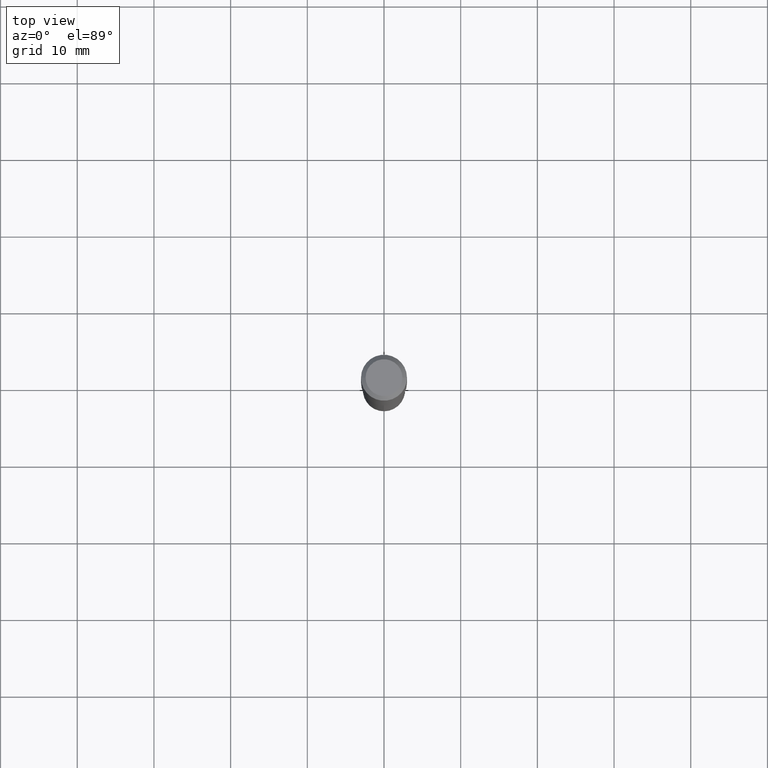
[diagram: clean part render]
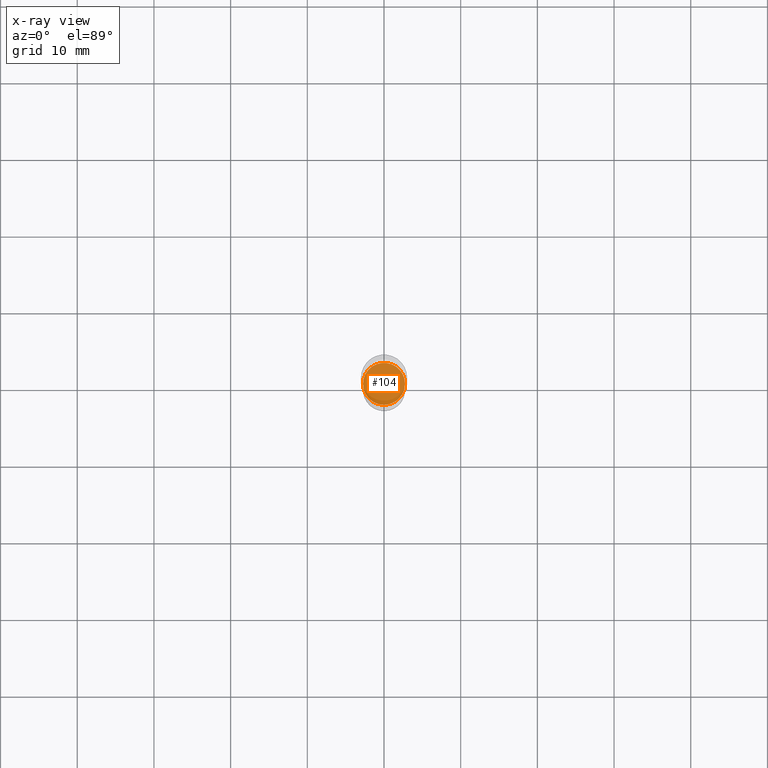
[diagram: x-ray — body ghosted, one internal face saturated and labeled with its STEP entity id]
A machine part, top view, then the same camera in x-ray: the body is ghosted and one INTERNAL B-rep face — a face not visible from any outside direction — is saturated and labeled: STEP entity #104.
In plain terms, the highlighted planar face has unit normal (-0, 0, 1).
Its self-contained STEP definition (entity closure, byte-faithful):
#2 = CARTESIAN_POINT ( 'NONE',  ( 4.525095478964977954E-29, -6.460637069395358365E-15, -1.850400000000000489 ) ) ;
#13 = EDGE_CURVE ( 'NONE', #336, #287, #255, .T. ) ;
#40 = CARTESIAN_POINT ( 'NONE',  ( 1.249090204566720734E-29, -1.115206308097434208E-14, -1.850400000000000489 ) ) ;
#60 = EDGE_LOOP ( 'NONE', ( #141, #275 ) ) ;
#75 = EDGE_CURVE ( 'NONE', #287, #336, #398, .T. ) ;
#90 = AXIS2_PLACEMENT_3D ( 'NONE', #405, #147, #222 ) ;
#104 = ADVANCED_FACE ( 'NONE', ( #381 ), #340, .F. ) ;
#141 = ORIENTED_EDGE ( 'NONE', *, *, #75, .F. ) ;
#147 = DIRECTION ( 'NONE',  ( -2.445468806185136597E-29, 3.491481338843145583E-15, 1.000000000000000000 ) ) ;
#173 = AXIS2_PLACEMENT_3D ( 'NONE', #2, #306, #300 ) ;
#203 = CARTESIAN_POINT ( 'NONE',  ( -0.1077499999999999986, -5.692378044439739125E-15, -1.850400000000000489 ) ) ;
#222 = DIRECTION ( 'NONE',  ( 1.000000000000000000, -6.982962677686263555E-15, 0.000000000000000000 ) ) ;
#232 = DIRECTION ( 'NONE',  ( -2.438088387897960049E-29, 3.491481338843145188E-15, 1.000000000000000000 ) ) ;
#242 = CARTESIAN_POINT ( 'NONE',  ( 0.1077499999999999986, -7.213051297916053224E-15, -1.850400000000000489 ) ) ;
#248 = AXIS2_PLACEMENT_3D ( 'NONE', #40, #232, #264 ) ;
#255 = CIRCLE ( 'NONE', #90, 0.1077499999999999986 ) ;
#264 = DIRECTION ( 'NONE',  ( 1.000000000000000000, -6.982962677686265922E-15, 4.876176775795935793E-29 ) ) ;
#275 = ORIENTED_EDGE ( 'NONE', *, *, #13, .F. ) ;
#287 = VERTEX_POINT ( 'NONE', #242 ) ;
#300 = DIRECTION ( 'NONE',  ( 1.000000000000000000, -6.982962677686263555E-15, 0.000000000000000000 ) ) ;
#306 = DIRECTION ( 'NONE',  ( -2.445468806185136597E-29, 3.491481338843145583E-15, 1.000000000000000000 ) ) ;
#336 = VERTEX_POINT ( 'NONE', #203 ) ;
#340 = PLANE ( 'NONE',  #248 ) ;
#381 = FACE_OUTER_BOUND ( 'NONE', #60, .T. ) ;
#398 = CIRCLE ( 'NONE', #173, 0.1077499999999999986 ) ;
#405 = CARTESIAN_POINT ( 'NONE',  ( 4.525095478964977954E-29, -6.460637069395358365E-15, -1.850400000000000489 ) ) ;